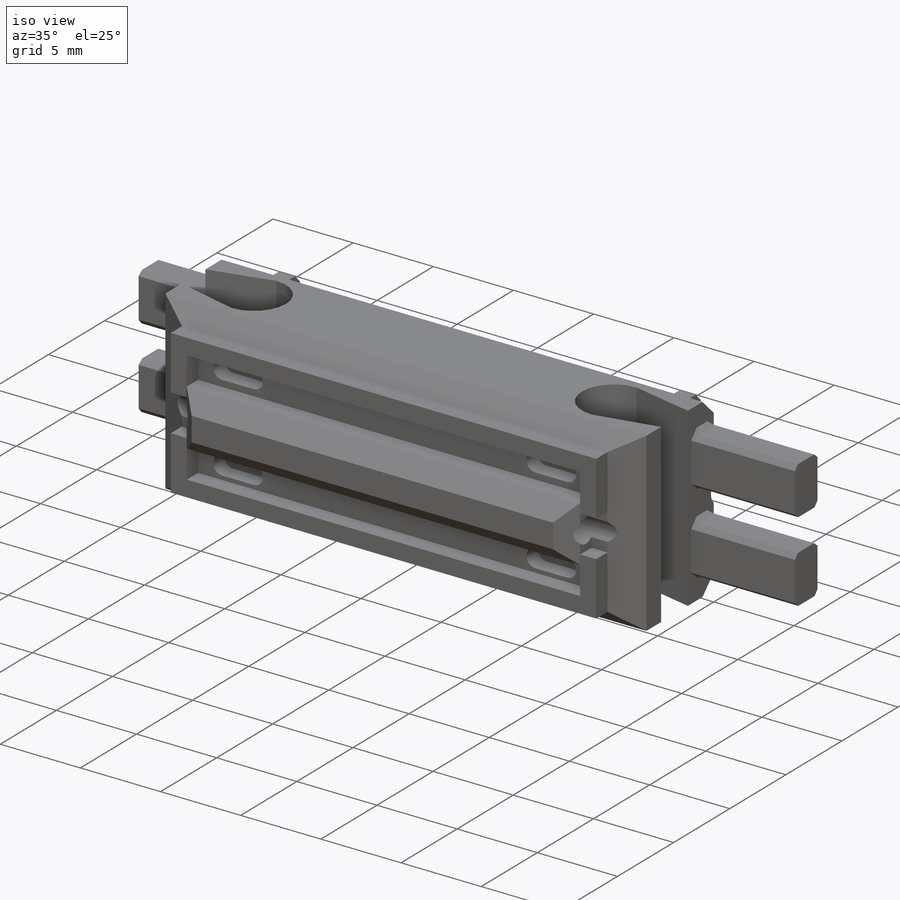
[diagram: iso view]
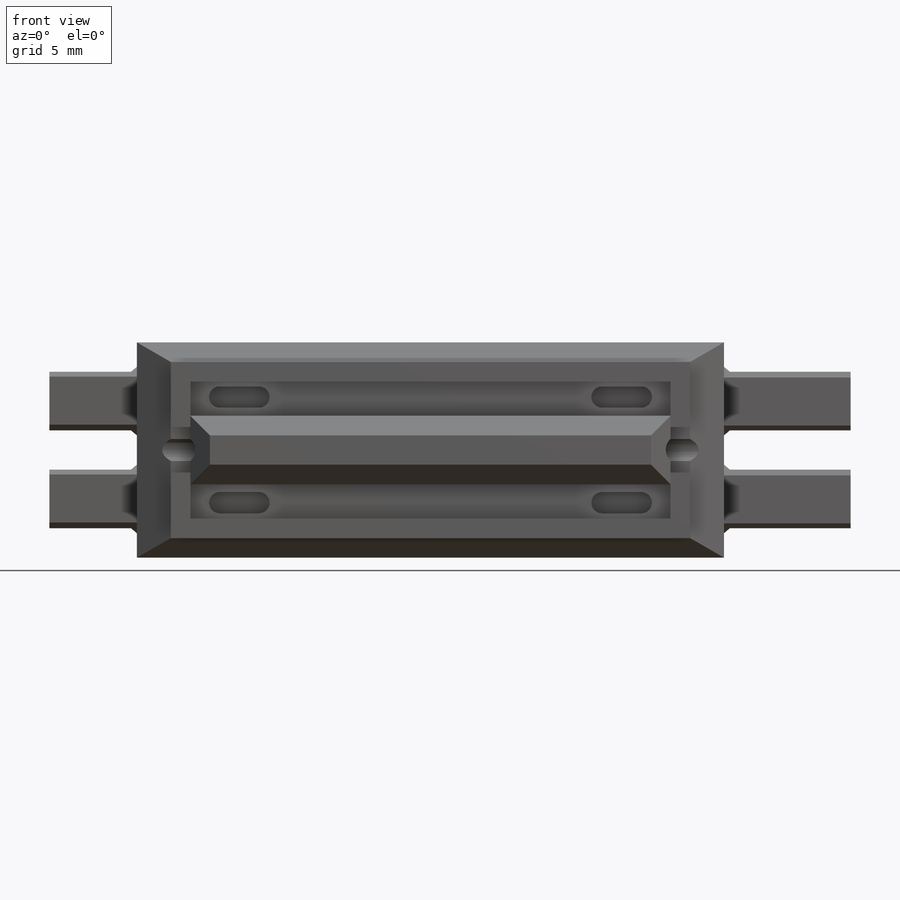
[diagram: front view]
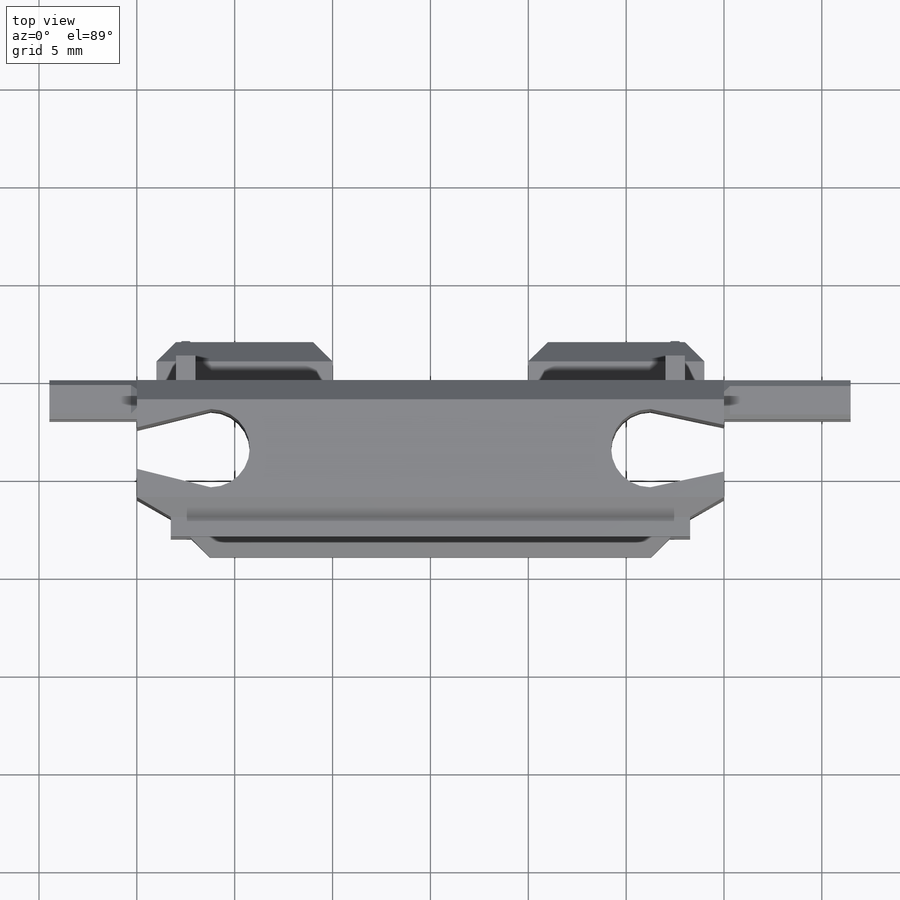
[diagram: top view]
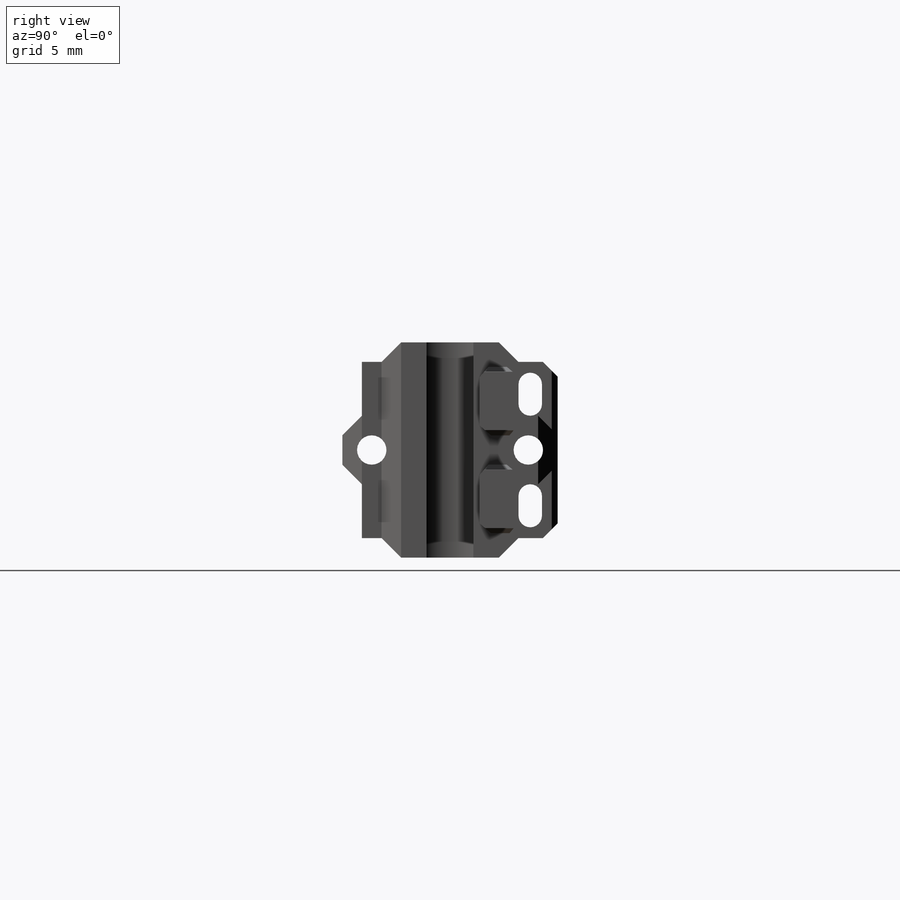
[diagram: right view]
SOLIDWORKS PART (.sldprt)
format: sldprt  version: not decoded by parser v0  size: 707,584 bytes
history: native  units: mm
features: sketch x12, chamfer x11, extrude x7, cut_extrude x5, material x1 (+13 scaffold rows collapsed)
feature tree (49):
  scaffold x13  (default folders/planes/origin — collapsed)
  material  "Material <not specified>"
  sketch  "Base"  dims[D1=30.0mm D2=11.0mm]
  extrude  "Boss-Extrude1"  Depth=7mm
  chamfer  "Chamfer4"  Distance=1mm Angle=45deg
  chamfer  "Chamfer5"  Distance=1mm Angle=60deg
  chamfer  "Chamfer6"  Distance=1mm Angle=45deg
  sketch  "Tendon extrude"  dims[c1.D1=4.0mm c1.D2=3.77mm c1.D3=1.0mm c1.D4=6.0mm c1.D5=1.0mm c1.D6=7.0mm c2.D3=1.0mm c2.D4=6.0mm]
  sketch  "Sketch8"  dims[D1=1.75mm D2=1.0mm D3=1.0mm]
  extrude  "Boss-Extrude5"  Depth=2mm
  sketch  "Sketch9"  dims[D1=1.5mm D2=1.5mm]
  cut_extrude  "Cut-Extrude5"  Depth=34.5mm
  chamfer  "Chamfer9"  Distance=1mm Angle=45deg
  sketch  "Sketch13"  dims[D1=1.75mm D2=1.0mm D3=5.0mm]
  extrude  "Boss-Extrude6"  Depth=2mm
  chamfer  "Chamfer10"  Distance=1mm Angle=45deg
  sketch  "Sketch14"  dims[D1=1.5mm D2=1.5mm]
  cut_extrude  "Cut-Extrude6"  Depth=30mm
  sketch  "Sketch15"  dims[D1=0.0mm D2=3.5mm D3=1.0mm D4=0.0mm D5=0.0mm]
  extrude  "Boss-Extrude7"  Depth=2mm
  sketch  "Sketch16"  dims[c1.D1=1.0mm c1.D2=0.6mm c1.D3=0.6mm c1.D4=1.2mm c1.D5=0.6mm c1.D6=0.4mm c2.D4=0.0mm]
  cut_extrude  "Cut-Extrude7"  Depth=26mm
  chamfer  "Chamfer11"  Distance=0.3mm Angle=45deg
  chamfer  "Chamfer12"  Distance=0.75mm Angle=45deg
  cut_extrude  "Cut-Extrude8"  [1 undecoded]
  sketch  "Sketch18"  dims[D1=3.0mm D2=2.0mm D3=1.0mm D4=0.5mm]
  extrude  "Boss-Extrude8"  Depth=6.47mm
  chamfer  "Chamfer13"  Distance=0.25mm Angle=50deg
  chamfer  "Chamfer14"  Distance=0.25mm Angle=50deg
  sketch  "Sketch19"  dims[D1=2.0mm D2=3.0mm D3=0.5mm D4=1.0mm D5=1.5mm]
  extrude  "Boss-Extrude9"  Depth=4.47mm
  chamfer  "Chamfer15"  Distance=0.25mm Angle=50deg
  chamfer  "Chamfer16"  Distance=0.25mm Angle=50deg
  sketch  "Sketch20"
  extrude  "Boss-Extrude10"  Depth=1mm
  sketch  "Sketch21"  dims[D1=0.8mm D2=0.8mm D3=2.0mm D4=1.5mm D5=1.5mm]
  cut_extrude  "Cut-Extrude9"  Depth=1mm
decode coverage: 33 of 35 modeling features carry decoded parameters
note: 1 parameter value undecoded
note: suppression state not decoded; provenance and decode notes live in map.json
